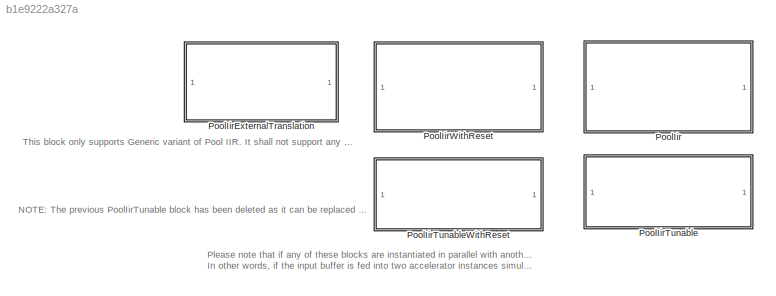
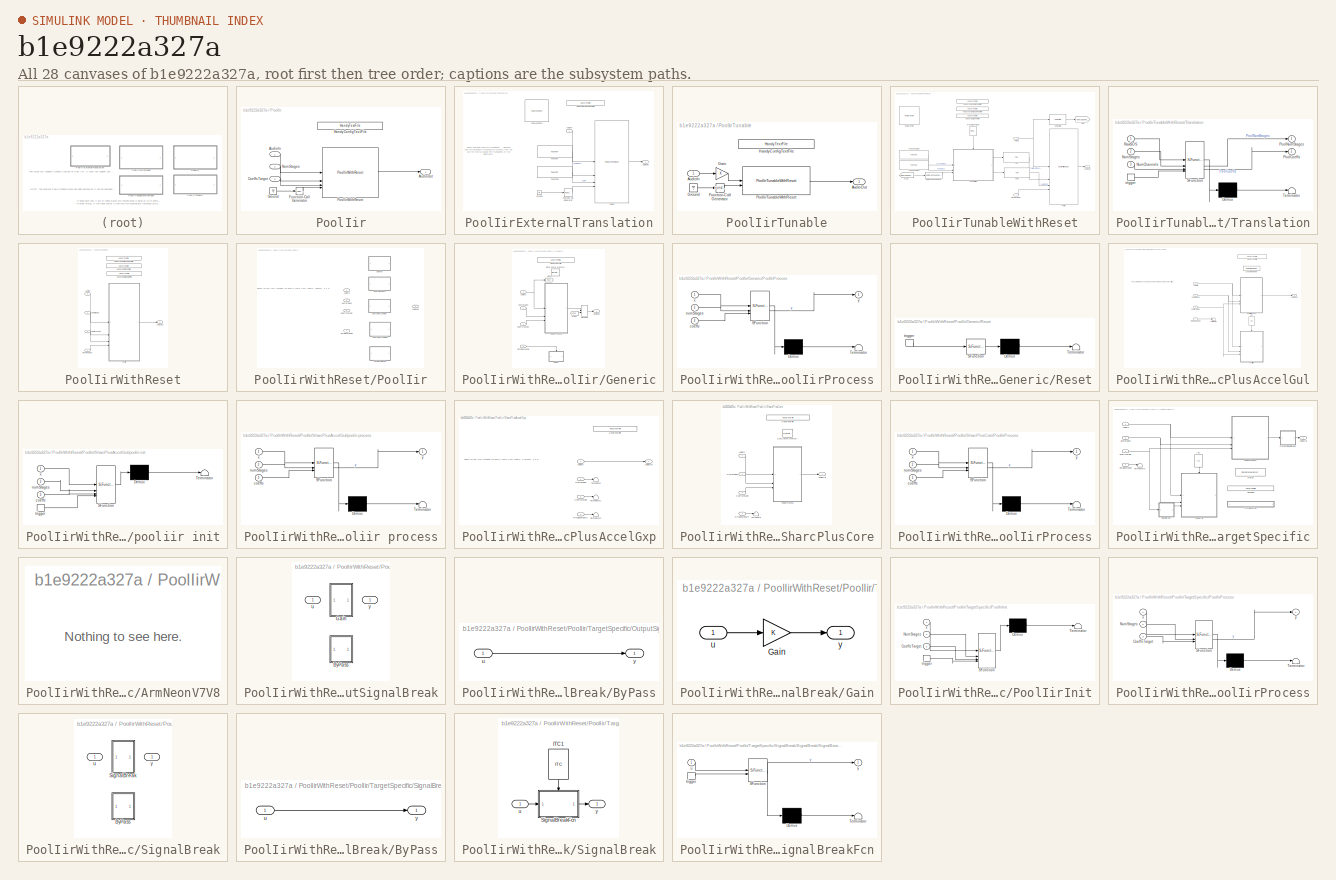
[diagram: thumbnail index - all 28 canvases of the model, root first then tree order]
MODEL slx_b1e9222a327a
KIND library
CONFIG AbsTol = auto
CONFIG EnableMultiTasking = off
CONFIG FixedStep = auto
CONFIG MaxStep = auto
CONFIG MinStep = auto
CONFIG RelTol = 1e-3
CONFIG SampleTimeConstraint = Unconstrained
CONFIG SolverName = VariableStepAuto
CONFIG StartTime = 0.0
CONFIG StopTime = 10.0
BLOCK [SubSystem] PoolIir
BLOCK [Inport] PoolIir/AudioIn
BLOCK [Outport] PoolIir/AudioOut
BLOCK [Inport] PoolIir/CoeffsTarget
  Port = 3
BLOCK [Reference] PoolIir/Function-Call Generator  REF=simulink/Ports &
Subsystems/Function-Call
Generator
  SourceBlock = simulink/Ports &\nSubsystems/Function-Call\nGenerator
  SourceType = Function-Call Generator
BLOCK [Ground] PoolIir/Ground
BLOCK [Reference] PoolIir/HandyConfigTextFile  REF=HandyTextFile/HandyTextFile
  SourceBlock = HandyTextFile/HandyTextFile
  SourceProductName = Bose Talaria
  SourceType = Talaria Handy Text File
BLOCK [Inport] PoolIir/NumStages
  Port = 2
BLOCK [Reference] PoolIir/PoolIirWithReset  REF=$bdroot/PoolIirWithReset
  SourceBlock = $bdroot/PoolIirWithReset
  SourceType = Bose Pool IIR With Reset
BLOCK [SubSystem] PoolIirExternalTranslation
  InitFcn = warning('''%s'' block will soon be deprecated. Please replace all the active instances of ''PoolIirExternalTranslation'' with an appropriate BTC supported version of Pool IIR located within PoolIir.slx.', gcb);
BLOCK [Inport] PoolIirExternalTranslation/AudioIn
BLOCK [Outport] PoolIirExternalTranslation/AudioOut
  VectorParamsAs1DForOutWhenUnconnected = off
BLOCK [Reference] PoolIirExternalTranslation/FeaturePath  REF=FeaturePath/FeaturePath
  SourceBlock = FeaturePath/FeaturePath
  SourceProductName = Bose Talaria
  SourceType = Talaria Feature Path
BLOCK [Reference] PoolIirExternalTranslation/Function-Call Generator  REF=simulink/Ports &
Subsystems/Function-Call
Generator
  SourceBlock = simulink/Ports &\nSubsystems/Function-Call\nGenerator
  SourceType = Function-Call Generator
BLOCK [Ground] PoolIirExternalTranslation/Ground
BLOCK [Reference] PoolIirExternalTranslation/HandyDefaultConfigFile  REF=HandyTextFile/HandyTextFile
  SourceBlock = HandyTextFile/HandyTextFile
  SourceProductName = Bose Talaria
  SourceType = Talaria Handy Text File
BLOCK [Reference] PoolIirExternalTranslation/PoolIir  REF=$bdroot/PoolIirWithReset
  LibrarySourceBlock = PoolIir/PoolIir
  SourceBlock = $bdroot/PoolIirWithReset
  SourceType = Bose Pool IIR With Reset
BLOCK [Reference] PoolIirExternalTranslation/TuneTOP  REF=TuneVar/TuneTOP
  SourceBlock = TuneVar/TuneTOP
  SourceProductName = Bose Talaria
  SourceType = Talaria Trivial Tune TOP
BLOCK [Reference] PoolIirExternalTranslation/TuneTOP1  REF=TuneVar/TuneTOP
  SourceBlock = TuneVar/TuneTOP
  SourceProductName = Bose Talaria
  SourceType = Talaria Trivial Tune TOP
BLOCK [SubSystem] PoolIirTunable
BLOCK [Inport] PoolIirTunable/AudioIn
BLOCK [Outport] PoolIirTunable/AudioOut
BLOCK [Reference] PoolIirTunable/Function-Call Generator  REF=simulink/Ports &
Subsystems/Function-Call
Generator
  SourceBlock = simulink/Ports &\nSubsystems/Function-Call\nGenerator
  SourceType = Function-Call Generator
BLOCK [Gain] PoolIirTunable/Gain
BLOCK [Ground] PoolIirTunable/Ground
BLOCK [Reference] PoolIirTunable/HandyConfigTextFile  REF=HandyTextFile/HandyTextFile
  SourceBlock = HandyTextFile/HandyTextFile
  SourceProductName = Bose Talaria
  SourceType = Talaria Handy Text File
BLOCK [Reference] PoolIirTunable/PoolIirTunableWithReset  REF=$bdroot/PoolIirTunableWithReset
  SourceBlock = $bdroot/PoolIirTunableWithReset
  SourceType = Bose Pool IIR Tunable
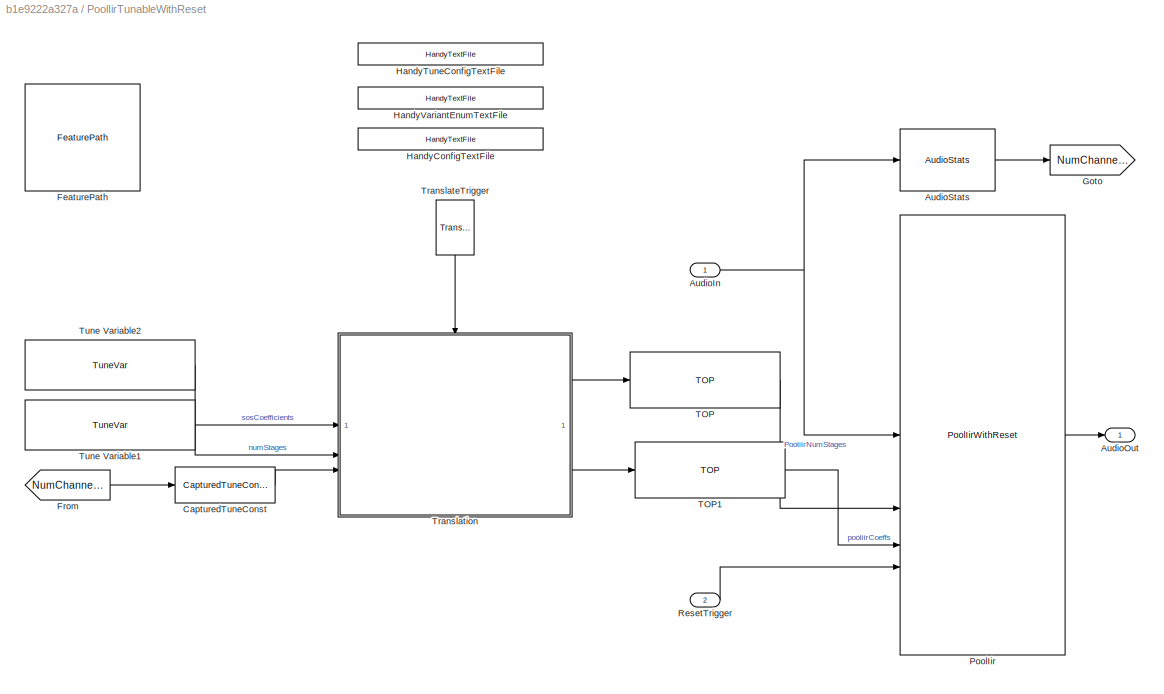
BLOCK [SubSystem] PoolIirTunableWithReset
BLOCK [Inport] PoolIirTunableWithReset/AudioIn
BLOCK [Outport] PoolIirTunableWithReset/AudioOut
  VectorParamsAs1DForOutWhenUnconnected = off
BLOCK [Reference] PoolIirTunableWithReset/AudioStats  REF=AudioStats/AudioStats
  SourceBlock = AudioStats/AudioStats
  SourceProductName = Bose Talaria
  SourceType = Talaria Audio Statistics
BLOCK [Reference] PoolIirTunableWithReset/CapturedTuneConst  REF=TuneVar/CapturedTuneConst
  SourceBlock = TuneVar/CapturedTuneConst
  SourceProductName = Bose Talaria
  SourceType = Talaria Captured Constant
BLOCK [Reference] PoolIirTunableWithReset/FeaturePath  REF=FeaturePath/FeaturePath
  SourceBlock = FeaturePath/FeaturePath
  SourceProductName = Bose Talaria
  SourceType = Talaria Feature Path
BLOCK [From] PoolIirTunableWithReset/From
  GotoTag = NumChannels
BLOCK [Goto] PoolIirTunableWithReset/Goto
  GotoTag = NumChannels
BLOCK [Reference] PoolIirTunableWithReset/HandyConfigTextFile  REF=HandyTextFile/HandyTextFile
  SourceBlock = HandyTextFile/HandyTextFile
  SourceProductName = Bose Talaria
  SourceType = Talaria Handy Text File
BLOCK [Reference] PoolIirTunableWithReset/HandyTuneConfigTextFile  REF=HandyTextFile/HandyTextFile
  SourceBlock = HandyTextFile/HandyTextFile
  SourceProductName = Bose Talaria
  SourceType = Talaria Handy Text File
BLOCK [Reference] PoolIirTunableWithReset/HandyVariantEnumTextFile  REF=HandyTextFile/HandyTextFile
  SourceBlock = HandyTextFile/HandyTextFile
  SourceProductName = Bose Talaria
  SourceType = Talaria Handy Text File
BLOCK [Reference] PoolIirTunableWithReset/PoolIir  REF=$bdroot/PoolIirWithReset
  SourceBlock = $bdroot/PoolIirWithReset
  SourceType = Bose Pool IIR With Reset
BLOCK [Inport] PoolIirTunableWithReset/ResetTrigger
  Port = 2
BLOCK [Reference] PoolIirTunableWithReset/TOP  REF=TOP/TOP
  SourceBlock = TOP/TOP
  SourceProductName = Bose Talaria
  SourceType = Talaria Target Overlay Parameter
BLOCK [Reference] PoolIirTunableWithReset/TOP1  REF=TOP/TOP
  SourceBlock = TOP/TOP
  SourceProductName = Bose Talaria
  SourceType = Talaria Target Overlay Parameter
BLOCK [Reference] PoolIirTunableWithReset/TranslateTrigger  REF=TuneVar/TranslateTrigger
  NameLocation = left
  SourceBlock = TuneVar/TranslateTrigger
  SourceProductName = Bose Talaria
  SourceType = Talaria Translate Trigger
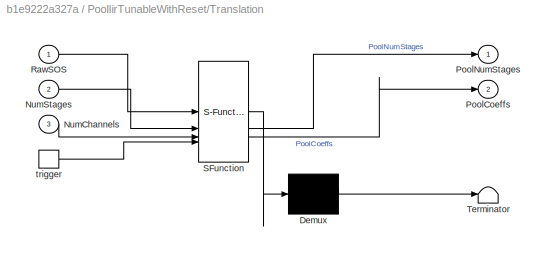
BLOCK [SubSystem] PoolIirTunableWithReset/Translation
  ErrorFcn = Stateflow.Translate.translate
  PermitHierarchicalResolution = ExplicitOnly
  SFBlockType = MATLAB Function
  TreatAsAtomicUnit = on
BLOCK [Demux] PoolIirTunableWithReset/Translation/ Demux 
  Outputs = 1
BLOCK [S-Function] PoolIirTunableWithReset/Translation/ SFunction 
  EnableBusSupport = off
  FunctionName = sf_sfun
  Parameters = MaxNumStages,VariantUint8
  PortCounts = [4 3]
  SFcnIsStateOwnerBlock = off
  SFunctionDeploymentMode = off
  Tag = Stateflow S-Function 4
BLOCK [Terminator] PoolIirTunableWithReset/Translation/ Terminator 
BLOCK [Inport] PoolIirTunableWithReset/Translation/NumChannels
  Port = 3
BLOCK [Inport] PoolIirTunableWithReset/Translation/NumStages
  Port = 2
BLOCK [Outport] PoolIirTunableWithReset/Translation/PoolCoeffs
  Port = 2
  VectorParamsAs1DForOutWhenUnconnected = off
BLOCK [Outport] PoolIirTunableWithReset/Translation/PoolNumStages
  VectorParamsAs1DForOutWhenUnconnected = off
BLOCK [Inport] PoolIirTunableWithReset/Translation/RawSOS
BLOCK [TriggerPort] PoolIirTunableWithReset/Translation/trigger
  ShowOutputPort = on
  StatesWhenEnabling = held
  TriggerType = function-call
  VariantControl = (inherit)
BLOCK [Reference] PoolIirTunableWithReset/Tune Variable1  REF=TuneVar/TuneVar
  SourceBlock = TuneVar/TuneVar
  SourceProductName = Bose Talaria
  SourceType = Talaria Tune Variable
BLOCK [Reference] PoolIirTunableWithReset/Tune Variable2  REF=TuneVar/TuneVar
  SourceBlock = TuneVar/TuneVar
  SourceProductName = Bose Talaria
  SourceType = Talaria Tune Variable
BLOCK [SubSystem] PoolIirWithReset
BLOCK [Inport] PoolIirWithReset/AudioIn
BLOCK [Outport] PoolIirWithReset/AudioOut
  VectorParamsAs1DForOutWhenUnconnected = off
BLOCK [Inport] PoolIirWithReset/CoeffsTarget
  Port = 3
BLOCK [Reference] PoolIirWithReset/HandyConfigTextFile  REF=HandyTextFile/HandyTextFile
  SourceBlock = HandyTextFile/HandyTextFile
  SourceProductName = Bose Talaria
  SourceType = Talaria Handy Text File
BLOCK [Reference] PoolIirWithReset/HandyDefaultConfigFile  REF=HandyTextFile/HandyTextFile
  SourceBlock = HandyTextFile/HandyTextFile
  SourceProductName = Bose Talaria
  SourceType = Talaria Handy Text File
BLOCK [Reference] PoolIirWithReset/HandyVariantEnumTextFile  REF=HandyTextFile/HandyTextFile
  SourceBlock = HandyTextFile/HandyTextFile
  SourceProductName = Bose Talaria
  SourceType = Talaria Handy Text File
BLOCK [Inport] PoolIirWithReset/NumStages
  Port = 2
BLOCK [SubSystem] PoolIirWithReset/PoolIir
  Variant = on
BLOCK [Inport] PoolIirWithReset/PoolIir/AudioIn
BLOCK [Outport] PoolIirWithReset/PoolIir/AudioOut
BLOCK [Inport] PoolIirWithReset/PoolIir/CoeffsTarget
  Port = 3
BLOCK [SubSystem] PoolIirWithReset/PoolIir/Generic
  VariantControl = (default)
BLOCK [Inport] PoolIirWithReset/PoolIir/Generic/AudioIn
BLOCK [Outport] PoolIirWithReset/PoolIir/Generic/AudioOut
  VectorParamsAs1DForOutWhenUnconnected = off
BLOCK [Inport] PoolIirWithReset/PoolIir/Generic/CoeffsTarget
  Port = 3
BLOCK [DataStoreMemory] PoolIirWithReset/PoolIir/Generic/Data Store Memory
  DataStoreName = states
  InitialValue = Config.VariantObj.CodeWorkMemoryInitVal
  OutDataTypeStr = single
  ShowAdditionalParam = off
  SignalType = real
BLOCK [From] PoolIirWithReset/PoolIir/Generic/From
  GotoTag = Input
BLOCK [Goto] PoolIirWithReset/PoolIir/Generic/Goto
  GotoTag = Input
BLOCK [Reference] PoolIirWithReset/PoolIir/Generic/HandyTextFile  REF=HandyTextFile/HandyTextFile
  SourceBlock = HandyTextFile/HandyTextFile
  SourceProductName = Bose Talaria
  SourceType = Talaria Handy Text File
BLOCK [Inport] PoolIirWithReset/PoolIir/Generic/NumStages
  Port = 2
BLOCK [SubSystem] PoolIirWithReset/PoolIir/Generic/PoolIirProcess
  ErrorFcn = Stateflow.Translate.translate
  PermitHierarchicalResolution = ExplicitOnly
  SFBlockType = MATLAB Function
  TreatAsAtomicUnit = on
BLOCK [Demux] PoolIirWithReset/PoolIir/Generic/PoolIirProcess/ Demux 
  Outputs = 1
BLOCK [S-Function] PoolIirWithReset/PoolIir/Generic/PoolIirProcess/ SFunction 
  EnableBusSupport = off
  FunctionName = sf_sfun
  PortCounts = [3 2]
  SFcnIsStateOwnerBlock = off
  SFunctionDeploymentMode = off
  Tag = Stateflow S-Function 9
BLOCK [Terminator] PoolIirWithReset/PoolIir/Generic/PoolIirProcess/ Terminator 
BLOCK [Inport] PoolIirWithReset/PoolIir/Generic/PoolIirProcess/coeffs
  Port = 3
BLOCK [Inport] PoolIirWithReset/PoolIir/Generic/PoolIirProcess/numStages
  Port = 2
BLOCK [Inport] PoolIirWithReset/PoolIir/Generic/PoolIirProcess/x
BLOCK [Outport] PoolIirWithReset/PoolIir/Generic/PoolIirProcess/y
  VectorParamsAs1DForOutWhenUnconnected = off
BLOCK [SubSystem] PoolIirWithReset/PoolIir/Generic/Reset
  ErrorFcn = Stateflow.Translate.translate
  PermitHierarchicalResolution = ExplicitOnly
  SFBlockType = MATLAB Function
  TreatAsAtomicUnit = on
BLOCK [Demux] PoolIirWithReset/PoolIir/Generic/Reset/ Demux 
  Outputs = 1
BLOCK [S-Function] PoolIirWithReset/PoolIir/Generic/Reset/ SFunction 
  EnableBusSupport = off
  FunctionName = sf_sfun
  PortCounts = [1 1]
  SFcnIsStateOwnerBlock = off
  SFunctionDeploymentMode = off
  Tag = Stateflow S-Function 10
BLOCK [Terminator] PoolIirWithReset/PoolIir/Generic/Reset/ Terminator 
BLOCK [TriggerPort] PoolIirWithReset/PoolIir/Generic/Reset/trigger
  ShowOutputPort = on
  StatesWhenEnabling = held
  TriggerType = function-call
  VariantControl = (inherit)
BLOCK [Reshape] PoolIirWithReset/PoolIir/Generic/Reshape
  OutputDimensionality = Derive from reference input port
BLOCK [Inport] PoolIirWithReset/PoolIir/Generic/RmdlShutdown
  Port = 4
BLOCK [Inport] PoolIirWithReset/PoolIir/NumStages
  Port = 2
BLOCK [Inport] PoolIirWithReset/PoolIir/RmdlShutdown
  Port = 4
BLOCK [SubSystem] PoolIirWithReset/PoolIir/SharcPlusAccelGul
  VariantControl = Config.Variant == "SharcPlusAccelGul"
BLOCK [Inport] PoolIirWithReset/PoolIir/SharcPlusAccelGul/AudioIn
BLOCK [Outport] PoolIirWithReset/PoolIir/SharcPlusAccelGul/AudioOut
  VectorParamsAs1DForOutWhenUnconnected = off
BLOCK [Inport] PoolIirWithReset/PoolIir/SharcPlusAccelGul/CoeffsTarget
  Port = 3
BLOCK [Reference] PoolIirWithReset/PoolIir/SharcPlusAccelGul/HandyTextFile  REF=HandyTextFile/HandyTextFile
  SourceBlock = HandyTextFile/HandyTextFile
  SourceProductName = Bose Talaria
  SourceType = Talaria Handy Text File
BLOCK [Reference] PoolIirWithReset/PoolIir/SharcPlusAccelGul/ITC  REF=ITC/ITC
  NameLocation = left
  SourceBlock = ITC/ITC
  SourceProductName = Bose Talaria
  SourceType = Talaria Initialization Trigger Control
BLOCK [Inport] PoolIirWithReset/PoolIir/SharcPlusAccelGul/NumStages
  Port = 2
BLOCK [Inport] PoolIirWithReset/PoolIir/SharcPlusAccelGul/RmdlShutdown
  Port = 4
BLOCK [Terminator] PoolIirWithReset/PoolIir/SharcPlusAccelGul/Terminator
BLOCK [DataStoreMemory] PoolIirWithReset/PoolIir/SharcPlusAccelGul/codeWorkMemory
  DataStoreName = codeWorkMemory
  InitialValue = Config.VariantObj.CodeWorkMemoryInitVal
  OutDataTypeStr = single
  ShowAdditionalParam = off
  SignalType = real
  WriteAfterWriteMsg = warning
BLOCK [SubSystem] PoolIirWithReset/PoolIir/SharcPlusAccelGul/pooliir init
  ErrorFcn = Stateflow.Translate.translate
  PermitHierarchicalResolution = ExplicitOnly
  RTWFcnName = foo
  RTWFcnNameOpts = User specified
  SFBlockType = MATLAB Function
  TreatAsAtomicUnit = on
BLOCK [Demux] PoolIirWithReset/PoolIir/SharcPlusAccelGul/pooliir init/ Demux 
  Outputs = 1
BLOCK [S-Function] PoolIirWithReset/PoolIir/SharcPlusAccelGul/pooliir init/ SFunction 
  EnableBusSupport = off
  FunctionName = sf_sfun
  PortCounts = [4 1]
  SFcnIsStateOwnerBlock = off
  SFunctionDeploymentMode = off
  Tag = Stateflow S-Function 11
BLOCK [Terminator] PoolIirWithReset/PoolIir/SharcPlusAccelGul/pooliir init/ Terminator 
BLOCK [Inport] PoolIirWithReset/PoolIir/SharcPlusAccelGul/pooliir init/coeffs
  Port = 3
BLOCK [Inport] PoolIirWithReset/PoolIir/SharcPlusAccelGul/pooliir init/numStages
  Port = 2
BLOCK [TriggerPort] PoolIirWithReset/PoolIir/SharcPlusAccelGul/pooliir init/trigger
  ShowOutputPort = on
  StatesWhenEnabling = held
  TriggerType = function-call
  VariantControl = (inherit)
BLOCK [Inport] PoolIirWithReset/PoolIir/SharcPlusAccelGul/pooliir init/x
BLOCK [SubSystem] PoolIirWithReset/PoolIir/SharcPlusAccelGul/pooliir process
  ErrorFcn = Stateflow.Translate.translate
  PermitHierarchicalResolution = ExplicitOnly
  SFBlockType = MATLAB Function
  TreatAsAtomicUnit = on
BLOCK [Demux] PoolIirWithReset/PoolIir/SharcPlusAccelGul/pooliir process/ Demux 
  Outputs = 1
BLOCK [S-Function] PoolIirWithReset/PoolIir/SharcPlusAccelGul/pooliir process/ SFunction 
  EnableBusSupport = off
  FunctionName = sf_sfun
  PortCounts = [3 2]
  SFcnIsStateOwnerBlock = off
  SFunctionDeploymentMode = off
  Tag = Stateflow S-Function 12
BLOCK [Terminator] PoolIirWithReset/PoolIir/SharcPlusAccelGul/pooliir process/ Terminator 
BLOCK [Inport] PoolIirWithReset/PoolIir/SharcPlusAccelGul/pooliir process/coeffs
  Port = 3
BLOCK [Inport] PoolIirWithReset/PoolIir/SharcPlusAccelGul/pooliir process/numStages
  Port = 2
BLOCK [Inport] PoolIirWithReset/PoolIir/SharcPlusAccelGul/pooliir process/x
BLOCK [Outport] PoolIirWithReset/PoolIir/SharcPlusAccelGul/pooliir process/y
  VectorParamsAs1DForOutWhenUnconnected = off
BLOCK [SubSystem] PoolIirWithReset/PoolIir/SharcPlusAccelGxp
  VariantControl = Config.Variant == "SharcPlusAccelGxp"
BLOCK [Inport] PoolIirWithReset/PoolIir/SharcPlusAccelGxp/AudioIn
BLOCK [Outport] PoolIirWithReset/PoolIir/SharcPlusAccelGxp/AudioOut
BLOCK [Inport] PoolIirWithReset/PoolIir/SharcPlusAccelGxp/CoeffsTarget
  Port = 3
BLOCK [Reference] PoolIirWithReset/PoolIir/SharcPlusAccelGxp/HandyTextFile  REF=HandyTextFile/HandyTextFile
  SourceBlock = HandyTextFile/HandyTextFile
  SourceProductName = Bose Talaria
  SourceType = Talaria Handy Text File
BLOCK [Inport] PoolIirWithReset/PoolIir/SharcPlusAccelGxp/NumStages
  Port = 2
BLOCK [Inport] PoolIirWithReset/PoolIir/SharcPlusAccelGxp/RmdlShutdown
  Port = 4
BLOCK [Terminator] PoolIirWithReset/PoolIir/SharcPlusAccelGxp/Terminator
BLOCK [Terminator] PoolIirWithReset/PoolIir/SharcPlusAccelGxp/Terminator1
BLOCK [Terminator] PoolIirWithReset/PoolIir/SharcPlusAccelGxp/Terminator2
BLOCK [SubSystem] PoolIirWithReset/PoolIir/SharcPlusCore
  VariantControl = Config.Variant == "SharcPlusCore"
BLOCK [Inport] PoolIirWithReset/PoolIir/SharcPlusCore/AudioIn
BLOCK [Outport] PoolIirWithReset/PoolIir/SharcPlusCore/AudioOut
  VectorParamsAs1DForOutWhenUnconnected = off
BLOCK [Inport] PoolIirWithReset/PoolIir/SharcPlusCore/CoeffsTarget
  Port = 3
BLOCK [DataStoreMemory] PoolIirWithReset/PoolIir/SharcPlusCore/Data Store Memory
  DataStoreName = states
  InitialValue = Config.VariantObj.CodeWorkMemoryInitVal
  OutDataTypeStr = single
  ShowAdditionalParam = off
  SignalType = real
BLOCK [Reference] PoolIirWithReset/PoolIir/SharcPlusCore/HandyTextFile  REF=HandyTextFile/HandyTextFile
  SourceBlock = HandyTextFile/HandyTextFile
  SourceProductName = Bose Talaria
  SourceType = Talaria Handy Text File
BLOCK [Inport] PoolIirWithReset/PoolIir/SharcPlusCore/NumStages
  Port = 2
BLOCK [SubSystem] PoolIirWithReset/PoolIir/SharcPlusCore/PoolIirProcess
  ErrorFcn = Stateflow.Translate.translate
  PermitHierarchicalResolution = ExplicitOnly
  SFBlockType = MATLAB Function
  TreatAsAtomicUnit = on
BLOCK [Demux] PoolIirWithReset/PoolIir/SharcPlusCore/PoolIirProcess/ Demux 
  Outputs = 1
BLOCK [S-Function] PoolIirWithReset/PoolIir/SharcPlusCore/PoolIirProcess/ SFunction 
  EnableBusSupport = off
  FunctionName = sf_sfun
  PortCounts = [3 2]
  SFcnIsStateOwnerBlock = off
  SFunctionDeploymentMode = off
  Tag = Stateflow S-Function 13
BLOCK [Terminator] PoolIirWithReset/PoolIir/SharcPlusCore/PoolIirProcess/ Terminator 
BLOCK [Inport] PoolIirWithReset/PoolIir/SharcPlusCore/PoolIirProcess/coeffs
  Port = 3
BLOCK [Inport] PoolIirWithReset/PoolIir/SharcPlusCore/PoolIirProcess/numStages
  Port = 2
BLOCK [Inport] PoolIirWithReset/PoolIir/SharcPlusCore/PoolIirProcess/x
BLOCK [Outport] PoolIirWithReset/PoolIir/SharcPlusCore/PoolIirProcess/y
  VectorParamsAs1DForOutWhenUnconnected = off
BLOCK [Inport] PoolIirWithReset/PoolIir/SharcPlusCore/RmdlShutdown
  Port = 4
BLOCK [Terminator] PoolIirWithReset/PoolIir/SharcPlusCore/Terminator
BLOCK [SubSystem] PoolIirWithReset/PoolIir/TargetSpecific
  VariantControl = (Config.Variant == "Hexagon") || (Config.Variant == "ArmNeonV7V8")
BLOCK [SubSystem] PoolIirWithReset/PoolIir/TargetSpecific/ArmNeonV7V8
  OpenFcn = HandyTextFileMask.DoOpenFcn(gcbh);
BLOCK [Inport] PoolIirWithReset/PoolIir/TargetSpecific/AudioIn
BLOCK [Outport] PoolIirWithReset/PoolIir/TargetSpecific/AudioOut
BLOCK [Inport] PoolIirWithReset/PoolIir/TargetSpecific/CoeffsTarget
  Port = 3
BLOCK [Reference] PoolIirWithReset/PoolIir/TargetSpecific/Hexagon  REF=HandyTextFile/HandyTextFile
  SourceBlock = HandyTextFile/HandyTextFile
  SourceProductName = Bose Talaria
  SourceType = Talaria Handy Text File
BLOCK [Reference] PoolIirWithReset/PoolIir/TargetSpecific/ITC  REF=ITC/ITC
  NameLocation = right
  SourceBlock = ITC/ITC
  SourceProductName = Bose Talaria
  SourceType = Talaria Initialization Trigger Control
BLOCK [Inport] PoolIirWithReset/PoolIir/TargetSpecific/NumStages
  Port = 2
BLOCK [SubSystem] PoolIirWithReset/PoolIir/TargetSpecific/OutputSignalBreak
  Variant = on
  VariantControl = Choice
BLOCK [SubSystem] PoolIirWithReset/PoolIir/TargetSpecific/OutputSignalBreak/ByPass
  VariantControl = (default)
BLOCK [Inport] PoolIirWithReset/PoolIir/TargetSpecific/OutputSignalBreak/ByPass/u
BLOCK [Outport] PoolIirWithReset/PoolIir/TargetSpecific/OutputSignalBreak/ByPass/y
BLOCK [SubSystem] PoolIirWithReset/PoolIir/TargetSpecific/OutputSignalBreak/Gain
  VariantControl = Config.Variant == PoolIirWithResetVariantEnum.Hexagon
BLOCK [Gain] PoolIirWithReset/PoolIir/TargetSpecific/OutputSignalBreak/Gain/Gain
BLOCK [Inport] PoolIirWithReset/PoolIir/TargetSpecific/OutputSignalBreak/Gain/u
BLOCK [Outport] PoolIirWithReset/PoolIir/TargetSpecific/OutputSignalBreak/Gain/y
BLOCK [Inport] PoolIirWithReset/PoolIir/TargetSpecific/OutputSignalBreak/u
BLOCK [Outport] PoolIirWithReset/PoolIir/TargetSpecific/OutputSignalBreak/y
BLOCK [SubSystem] PoolIirWithReset/PoolIir/TargetSpecific/PoolIirInit
  ErrorFcn = Stateflow.Translate.translate
  LibrarySourceBlock = simulink/User-Defined\nFunctions/MATLAB Function
  PermitHierarchicalResolution = ExplicitOnly
  SFBlockType = MATLAB Function
  TreatAsAtomicUnit = on
BLOCK [Demux] PoolIirWithReset/PoolIir/TargetSpecific/PoolIirInit/ Demux 
  Outputs = 1
BLOCK [S-Function] PoolIirWithReset/PoolIir/TargetSpecific/PoolIirInit/ SFunction 
  EnableBusSupport = off
  FunctionName = sf_sfun
  Parameters = MaxNumOfThreads,MaxNumSosStages,VariantUint8
  PortCounts = [4 1]
  SFcnIsStateOwnerBlock = off
  SFunctionDeploymentMode = off
  Tag = Stateflow S-Function 1
BLOCK [Terminator] PoolIirWithReset/PoolIir/TargetSpecific/PoolIirInit/ Terminator 
BLOCK [Inport] PoolIirWithReset/PoolIir/TargetSpecific/PoolIirInit/CoeffsTarget
  Port = 3
BLOCK [Inport] PoolIirWithReset/PoolIir/TargetSpecific/PoolIirInit/NumStages
  Port = 2
BLOCK [TriggerPort] PoolIirWithReset/PoolIir/TargetSpecific/PoolIirInit/trigger
  ShowOutputPort = on
  StatesWhenEnabling = held
  TriggerType = function-call
  VariantControl = (inherit)
BLOCK [Inport] PoolIirWithReset/PoolIir/TargetSpecific/PoolIirInit/x
BLOCK [SubSystem] PoolIirWithReset/PoolIir/TargetSpecific/PoolIirProcess
  ErrorFcn = Stateflow.Translate.translate
  LibrarySourceBlock = simulink/User-Defined\nFunctions/MATLAB Function
  PermitHierarchicalResolution = ExplicitOnly
  SFBlockType = MATLAB Function
  TreatAsAtomicUnit = on
BLOCK [Demux] PoolIirWithReset/PoolIir/TargetSpecific/PoolIirProcess/ Demux 
  Outputs = 1
BLOCK [S-Function] PoolIirWithReset/PoolIir/TargetSpecific/PoolIirProcess/ SFunction 
  EnableBusSupport = off
  FunctionName = sf_sfun
  Parameters = VariantUint8
  PortCounts = [3 2]
  SFcnIsStateOwnerBlock = off
  SFunctionDeploymentMode = off
  Tag = Stateflow S-Function 2
BLOCK [Terminator] PoolIirWithReset/PoolIir/TargetSpecific/PoolIirProcess/ Terminator 
BLOCK [Inport] PoolIirWithReset/PoolIir/TargetSpecific/PoolIirProcess/CoeffsTarget
  Port = 3
BLOCK [Inport] PoolIirWithReset/PoolIir/TargetSpecific/PoolIirProcess/NumStages
  Port = 2
BLOCK [Inport] PoolIirWithReset/PoolIir/TargetSpecific/PoolIirProcess/x
BLOCK [Outport] PoolIirWithReset/PoolIir/TargetSpecific/PoolIirProcess/y
BLOCK [Inport] PoolIirWithReset/PoolIir/TargetSpecific/RmdlShutdown
  Port = 4
BLOCK [SubSystem] PoolIirWithReset/PoolIir/TargetSpecific/SignalBreak
  Variant = on
  VariantControl = Choice
BLOCK [SubSystem] PoolIirWithReset/PoolIir/TargetSpecific/SignalBreak/ByPass
  VariantControl = (default)
BLOCK [Inport] PoolIirWithReset/PoolIir/TargetSpecific/SignalBreak/ByPass/u
BLOCK [Outport] PoolIirWithReset/PoolIir/TargetSpecific/SignalBreak/ByPass/y
BLOCK [SubSystem] PoolIirWithReset/PoolIir/TargetSpecific/SignalBreak/SignalBreak
  VariantControl = Config.Variant == PoolIirWithResetVariantEnum.Hexagon
BLOCK [Reference] PoolIirWithReset/PoolIir/TargetSpecific/SignalBreak/SignalBreak/ITC1  REF=ITC/ITC
  NameLocation = right
  SourceBlock = ITC/ITC
  SourceProductName = Bose Talaria
  SourceType = Talaria Initialization Trigger Control
BLOCK [SubSystem] PoolIirWithReset/PoolIir/TargetSpecific/SignalBreak/SignalBreak/SignalBreakFcn
  ErrorFcn = Stateflow.Translate.translate
  LibrarySourceBlock = simulink/User-Defined\nFunctions/MATLAB Function
  PermitHierarchicalResolution = ExplicitOnly
  SFBlockType = MATLAB Function
  TreatAsAtomicUnit = on
BLOCK [Demux] PoolIirWithReset/PoolIir/TargetSpecific/SignalBreak/SignalBreak/SignalBreakFcn/ Demux 
  Outputs = 1
BLOCK [S-Function] PoolIirWithReset/PoolIir/TargetSpecific/SignalBreak/SignalBreak/SignalBreakFcn/ SFunction 
  EnableBusSupport = off
  FunctionName = sf_sfun
  PortCounts = [2 2]
  SFcnIsStateOwnerBlock = off
  SFunctionDeploymentMode = off
  Tag = Stateflow S-Function 3
BLOCK [Terminator] PoolIirWithReset/PoolIir/TargetSpecific/SignalBreak/SignalBreak/SignalBreakFcn/ Terminator 
BLOCK [TriggerPort] PoolIirWithReset/PoolIir/TargetSpecific/SignalBreak/SignalBreak/SignalBreakFcn/trigger
  ShowOutputPort = on
  StatesWhenEnabling = held
  TriggerType = function-call
  VariantControl = (inherit)
BLOCK [Inport] PoolIirWithReset/PoolIir/TargetSpecific/SignalBreak/SignalBreak/SignalBreakFcn/u
BLOCK [Outport] PoolIirWithReset/PoolIir/TargetSpecific/SignalBreak/SignalBreak/SignalBreakFcn/y
BLOCK [Inport] PoolIirWithReset/PoolIir/TargetSpecific/SignalBreak/SignalBreak/u
BLOCK [Outport] PoolIirWithReset/PoolIir/TargetSpecific/SignalBreak/SignalBreak/y
BLOCK [Inport] PoolIirWithReset/PoolIir/TargetSpecific/SignalBreak/u
BLOCK [Outport] PoolIirWithReset/PoolIir/TargetSpecific/SignalBreak/y
BLOCK [Terminator] PoolIirWithReset/PoolIir/TargetSpecific/Terminator3
BLOCK [DataStoreMemory] PoolIirWithReset/PoolIir/TargetSpecific/states
  DataStoreName = states
  InitialValue = Config.VariantObj.DsmStatesInitVal
  OutDataTypeStr = single
  ShowAdditionalParam = off
  SignalType = real
  WriteAfterWriteMsg = warning
BLOCK [Inport] PoolIirWithReset/ResetTrigger
  Port = 4
ANNOTATION (root): Please note that if any of these blocks are instantiated in parallel with another accelerator instance (FIR/IIR), it would result in redundancy. In other words, if the input buffer is fed into two accelerator instances simultaneously, it would result in the creation of a duplicate buffer to have unique input buffer for each accelerator instance.
ANNOTATION (root): NOTE: The previous PoolIirTunable block has been deleted as it can be replaced by 'Generic' variant of current PoolIirTunable block.
ANNOTATION (root): This block only supports Generic variant of Pool IIR. It shall not support any hardware-specific variant as this block is PLANNED TO BE DEPRECATED SOON . For any active instance of this block, please swap it out with one of the other Pool IIR lib blocks ASAP!
ANNOTATION PoolIirExternalTranslation: These TuneTOPs have no translations... because they are intended to integrate in systems that still use the Symfun-based Perl translations of the BDSP days.
ANNOTATION PoolIirWithReset/PoolIir: Please refrain from changing the inport1 name from 'AudioIn'. However, if it is unavoidable, please update the code at line 53 in PooliirAccelMask.m and also update the port names for the blocks that use PooliirAccelMask.m (Currently, only the SharcAccel variants of PoolIir, PoolIirTunable block and PooliirAccelRmdl block uses that.)
ANNOTATION PoolIirWithReset/PoolIir/SharcPlusAccelGul: Please refrain from changing the inport1 name from 'AudioIn'. However, if it is unavoidable, please update the code at line 53 in PooliirAccelMask.m and also update the port names for the blocks that use PooliirAccelMask.m (Currently, only the SharcAccel variants of PoolIir, PoolIirTunable block and PooliirAccelRmdl block uses that.)
ANNOTATION PoolIirWithReset/PoolIir/SharcPlusAccelGxp: Please refrain from changing the inport1 name from 'AudioIn'. However, if it is unavoidable, please update the code at line 53 in PooliirAccelMask.m and also update the port names for the blocks that use PooliirAccelMask.m (Currently, only the SharcAccel variants of PoolIir, PoolIirTunable block and PooliirAccelRmdl block uses that.)
ANNOTATION PoolIirWithReset/PoolIir/TargetSpecific/ArmNeonV7V8: Nothing to see here.
LINE PoolIir/AudioIn:1 -> PoolIir/PoolIirWithReset:1
LINE PoolIir/CoeffsTarget:1 -> PoolIir/PoolIirWithReset:3
LINE PoolIir/Function-Call Generator:1 -> PoolIir/PoolIirWithReset:4
LINE PoolIir/Ground:1 -> PoolIir/Function-Call Generator:1
LINE PoolIir/NumStages:1 -> PoolIir/PoolIirWithReset:2
LINE PoolIir/PoolIirWithReset:1 -> PoolIir/AudioOut:1
LINE PoolIirTunable/AudioIn:1 -> PoolIirTunable/Gain:1
LINE PoolIirTunable/Function-Call Generator:1 -> PoolIirTunable/PoolIirTunableWithReset:2
LINE PoolIirTunable/Gain:1 -> PoolIirTunable/PoolIirTunableWithReset:1
LINE PoolIirTunable/Ground:1 -> PoolIirTunable/Function-Call Generator:1
LINE PoolIirTunable/PoolIirTunableWithReset:1 -> PoolIirTunable/AudioOut:1
LINE PoolIirWithReset/AudioIn:1 -> PoolIirWithReset/PoolIir:1
LINE PoolIirWithReset/CoeffsTarget:1 -> PoolIirWithReset/PoolIir:3
LINE PoolIirWithReset/NumStages:1 -> PoolIirWithReset/PoolIir:2
NET PoolIirWithReset/PoolIir/Generic/AudioIn:1 -> PoolIirWithReset/PoolIir/Generic/Goto:1, PoolIirWithReset/PoolIir/Generic/PoolIirProcess:1
LINE PoolIirWithReset/PoolIir/Generic/CoeffsTarget:1 -> PoolIirWithReset/PoolIir/Generic/PoolIirProcess:3
LINE PoolIirWithReset/PoolIir/Generic/From:1 -> PoolIirWithReset/PoolIir/Generic/Reshape:2
LINE PoolIirWithReset/PoolIir/Generic/NumStages:1 -> PoolIirWithReset/PoolIir/Generic/PoolIirProcess:2
LINE PoolIirWithReset/PoolIir/Generic/PoolIirProcess:1 -> PoolIirWithReset/PoolIir/Generic/Reshape:1
LINE PoolIirWithReset/PoolIir/Generic/Reshape:1 -> PoolIirWithReset/PoolIir/Generic/AudioOut:1
LINE PoolIirWithReset/PoolIir/Generic/RmdlShutdown:1 -> PoolIirWithReset/PoolIir/Generic/Reset:trigger
NET PoolIirWithReset/PoolIir/SharcPlusAccelGul/AudioIn:1 -> PoolIirWithReset/PoolIir/SharcPlusAccelGul/pooliir init:1, PoolIirWithReset/PoolIir/SharcPlusAccelGul/pooliir process:1
NET PoolIirWithReset/PoolIir/SharcPlusAccelGul/CoeffsTarget:1 -> PoolIirWithReset/PoolIir/SharcPlusAccelGul/pooliir init:3, PoolIirWithReset/PoolIir/SharcPlusAccelGul/pooliir process:3
LINE PoolIirWithReset/PoolIir/SharcPlusAccelGul/ITC:1 -> PoolIirWithReset/PoolIir/SharcPlusAccelGul/pooliir init:trigger
NET PoolIirWithReset/PoolIir/SharcPlusAccelGul/NumStages:1 -> PoolIirWithReset/PoolIir/SharcPlusAccelGul/pooliir init:2, PoolIirWithReset/PoolIir/SharcPlusAccelGul/pooliir process:2
LINE PoolIirWithReset/PoolIir/SharcPlusAccelGul/RmdlShutdown:1 -> PoolIirWithReset/PoolIir/SharcPlusAccelGul/Terminator:1
LINE PoolIirWithReset/PoolIir/SharcPlusAccelGul/pooliir process:1 -> PoolIirWithReset/PoolIir/SharcPlusAccelGul/AudioOut:1
LINE PoolIirWithReset/PoolIir/SharcPlusAccelGxp/AudioIn:1 -> PoolIirWithReset/PoolIir/SharcPlusAccelGxp/AudioOut:1
LINE PoolIirWithReset/PoolIir/SharcPlusAccelGxp/CoeffsTarget:1 -> PoolIirWithReset/PoolIir/SharcPlusAccelGxp/Terminator1:1
LINE PoolIirWithReset/PoolIir/SharcPlusAccelGxp/NumStages:1 -> PoolIirWithReset/PoolIir/SharcPlusAccelGxp/Terminator:1
LINE PoolIirWithReset/PoolIir/SharcPlusAccelGxp/RmdlShutdown:1 -> PoolIirWithReset/PoolIir/SharcPlusAccelGxp/Terminator2:1
LINE PoolIirWithReset/PoolIir/SharcPlusCore/AudioIn:1 -> PoolIirWithReset/PoolIir/SharcPlusCore/PoolIirProcess:1
LINE PoolIirWithReset/PoolIir/SharcPlusCore/CoeffsTarget:1 -> PoolIirWithReset/PoolIir/SharcPlusCore/PoolIirProcess:3
LINE PoolIirWithReset/PoolIir/SharcPlusCore/NumStages:1 -> PoolIirWithReset/PoolIir/SharcPlusCore/PoolIirProcess:2
LINE PoolIirWithReset/PoolIir/SharcPlusCore/PoolIirProcess:1 -> PoolIirWithReset/PoolIir/SharcPlusCore/AudioOut:1
LINE PoolIirWithReset/PoolIir/SharcPlusCore/RmdlShutdown:1 -> PoolIirWithReset/PoolIir/SharcPlusCore/Terminator:1
NET PoolIirWithReset/PoolIir/TargetSpecific/AudioIn:1 -> PoolIirWithReset/PoolIir/TargetSpecific/PoolIirInit:1, PoolIirWithReset/PoolIir/TargetSpecific/PoolIirProcess:1
NET PoolIirWithReset/PoolIir/TargetSpecific/CoeffsTarget:1 -> PoolIirWithReset/PoolIir/TargetSpecific/PoolIirProcess:3, PoolIirWithReset/PoolIir/TargetSpecific/SignalBreak:1
LINE PoolIirWithReset/PoolIir/TargetSpecific/ITC:1 -> PoolIirWithReset/PoolIir/TargetSpecific/PoolIirInit:trigger
NET PoolIirWithReset/PoolIir/TargetSpecific/NumStages:1 -> PoolIirWithReset/PoolIir/TargetSpecific/PoolIirInit:2, PoolIirWithReset/PoolIir/TargetSpecific/PoolIirProcess:2
LINE PoolIirWithReset/PoolIir/TargetSpecific/OutputSignalBreak/ByPass/u:1 -> PoolIirWithReset/PoolIir/TargetSpecific/OutputSignalBreak/ByPass/y:1
LINE PoolIirWithReset/PoolIir/TargetSpecific/OutputSignalBreak/Gain/Gain:1 -> PoolIirWithReset/PoolIir/TargetSpecific/OutputSignalBreak/Gain/y:1
LINE PoolIirWithReset/PoolIir/TargetSpecific/OutputSignalBreak/Gain/u:1 -> PoolIirWithReset/PoolIir/TargetSpecific/OutputSignalBreak/Gain/Gain:1
LINE PoolIirWithReset/PoolIir/TargetSpecific/OutputSignalBreak:1 -> PoolIirWithReset/PoolIir/TargetSpecific/AudioOut:1
LINE PoolIirWithReset/PoolIir/TargetSpecific/PoolIirProcess:1 -> PoolIirWithReset/PoolIir/TargetSpecific/OutputSignalBreak:1
LINE PoolIirWithReset/PoolIir/TargetSpecific/RmdlShutdown:1 -> PoolIirWithReset/PoolIir/TargetSpecific/Terminator3:1
LINE PoolIirWithReset/PoolIir/TargetSpecific/SignalBreak/ByPass/u:1 -> PoolIirWithReset/PoolIir/TargetSpecific/SignalBreak/ByPass/y:1
LINE PoolIirWithReset/PoolIir/TargetSpecific/SignalBreak/SignalBreak/ITC1:1 -> PoolIirWithReset/PoolIir/TargetSpecific/SignalBreak/SignalBreak/SignalBreakFcn:trigger
LINE PoolIirWithReset/PoolIir/TargetSpecific/SignalBreak/SignalBreak/SignalBreakFcn:1 -> PoolIirWithReset/PoolIir/TargetSpecific/SignalBreak/SignalBreak/y:1
LINE PoolIirWithReset/PoolIir/TargetSpecific/SignalBreak/SignalBreak/u:1 -> PoolIirWithReset/PoolIir/TargetSpecific/SignalBreak/SignalBreak/SignalBreakFcn:1
LINE PoolIirWithReset/PoolIir/TargetSpecific/SignalBreak:1 -> PoolIirWithReset/PoolIir/TargetSpecific/PoolIirInit:3
LINE PoolIirWithReset/PoolIir:1 -> PoolIirWithReset/AudioOut:1
LINE PoolIirWithReset/ResetTrigger:1 -> PoolIirWithReset/PoolIir:4
note: NET lines group one-source signal fan-out (src -> all destinations, sorted); 1:1 wires keep LINE
CHART PoolIirWithReset/PoolIir/SharcPlusCore/PoolIirProcess states=1 transitions=1
  STATE_LABEL 'eML_blk_kernel()'
  STATE_LABEL 'SCRIPT:\nfunction y = PooliirProcess(x,numStages, coeffs)\n%#codegen\n\n% Parameters:\n%   x:              input channels [frame size x number of inputs]\n%   numStages:      coefficient sets [total filter lengths x 1]\n%   coeffs:         array of filter lengths [number of filters x 1]\n%\n% Global parameters:\n%   states:         State buffer of filter [1x 2*MaxNumStages]\n%   RMDLshutdown:   Flag to indic...<+908ch>'
CHART PoolIirWithReset/PoolIir/TargetSpecific/PoolIirInit states=1 transitions=1
  STATE_LABEL 'eML_blk_kernel()'
  STATE_LABEL 'SCRIPT:\nfunction PoolIirInit(x, NumStages, CoeffsTarget, VariantUint8, MaxNumOfThreads, MaxNumSosStages)\n% Process function for Pooliir\n%\n% Parameters:\n%   x:                  input channels [frame size x number of inputs]\n%   NumStages:          array of filter lengths [NumChannels x 1]\n%   CoeffsTarget:       coefficient sets [total filter lengths x 1]\n%\n% Global parameters:\n%   states:         ...<+2181ch>'
CHART PoolIirWithReset/PoolIir/TargetSpecific/PoolIirProcess states=1 transitions=1
  STATE_LABEL 'eML_blk_kernel()'
  STATE_LABEL 'SCRIPT:\nfunction y = PoolIirProcess(x, NumStages, CoeffsTarget, VariantUint8)\n% Process function for Pooliir\n%\n% Parameters:\n%   x:              input channels [frame size x number of inputs]\n%   NumStages:      array of filter lengths per channel [NumChannels x 1]\n%   CoeffsTarget:   coefficient set used for the specific target [total sim filter lengths x 1]\n% \n% Global parameters:\n%   states: wo...<+1308ch>'
CHART PoolIirWithReset/PoolIir/TargetSpecific/SignalBreak/SignalBreak/SignalBreakFcn states=1 transitions=1
  STATE_LABEL 'eML_blk_kernel()'
  STATE_LABEL 'SCRIPT:\nfunction y = fcn(u)\n\ny = u;\n'
CHART PoolIirTunableWithReset/Translation states=1 transitions=1
  STATE_LABEL 'eML_blk_kernel()'
  STATE_LABEL "SCRIPT:\nfunction [PoolNumStages, PoolCoeffs] = pooliirTranslation(RawSOS, NumStages, MaxNumStages, VariantUint8,  NumChannels)\n%#codegen\n\n% Translation from raw SOS for pool SOS\n\n% Some build time sanity size checking before calling the translation\nif numel(NumStages.Value) ~= NumChannels\n    error('Size of num stages has to match number of input channels')\nend\n\nif RawSOS.Size(2) ~= 6\n    error ('...<+1197ch>"
CHART PoolIirWithReset/PoolIir/Generic/PoolIirProcess states=1 transitions=1
  STATE_LABEL 'eML_blk_kernel()'
  STATE_LABEL 'SCRIPT:\nfunction y = pooliir_filter(x,numStages, coeffs)\n%#codegen\n\n% Extract configuration information from inputs\n[frame_size, num_channels] = size(x);\n\n% Initialize variables\nglobal states;\n\n% Typecast the variables\nframe_size = uint32(frame_size);\nnum_channels = uint32(num_channels);\n\n%Compute the filter coefficients\ny = pooliir(x, frame_size, num_channels, numStages, coeffs, states);\n\nend\n\n'
CHART PoolIirWithReset/PoolIir/Generic/Reset states=1 transitions=1
  STATE_LABEL 'eML_blk_kernel()'
  STATE_LABEL 'SCRIPT:\nfunction reset\n%#codegen \n\n% Reset the states DSM to zeros\nglobal states;\nstates(:) = 0;'
CHART PoolIirWithReset/PoolIir/SharcPlusAccelGul/pooliir init states=1 transitions=1
  STATE_LABEL 'eML_blk_kernel()'
  STATE_LABEL 'SCRIPT:\nfunction pooliir_init(x, numStages, coeffs)\n% Init function for Pooliir\n%\n% Parameters:\n%   x:              input channels [frame size x number of inputs]\n%   numStages:      coefficient sets [total filter lengths x 1]\n%   coeffs:         array of filter lengths [number of filters x 1]\n%\n% Global parameters:\n%   codeWorkMemory: working memory set up during roommode reset/init CRL\n%        ...<+1233ch>'
CHART PoolIirWithReset/PoolIir/SharcPlusAccelGul/pooliir process states=1 transitions=1
  STATE_LABEL 'eML_blk_kernel()'
  STATE_LABEL 'SCRIPT:\nfunction y = pooliir_process(x, numStages, coeffs)\n% Process function for Pooliir\n%\n% Parameters:\n%   x:              input channels [frame size x number of inputs]\n%   numStages:      coefficient sets [total filter lengths x 1]\n%   coeffs:         array of filter lengths [number of filters x 1]\n%\n% Global parameters:\n%   codeWorkMemory: working memory set up during roommode reset/init CRL...<+794ch>'
CHART  states=0 transitions=0
CHART  states=0 transitions=0
CHART  states=0 transitions=0
CHART  states=0 transitions=0
CHART  states=0 transitions=0
CHART  states=0 transitions=0
CHART  states=0 transitions=0
CHART  states=0 transitions=0
CHART  states=0 transitions=0
